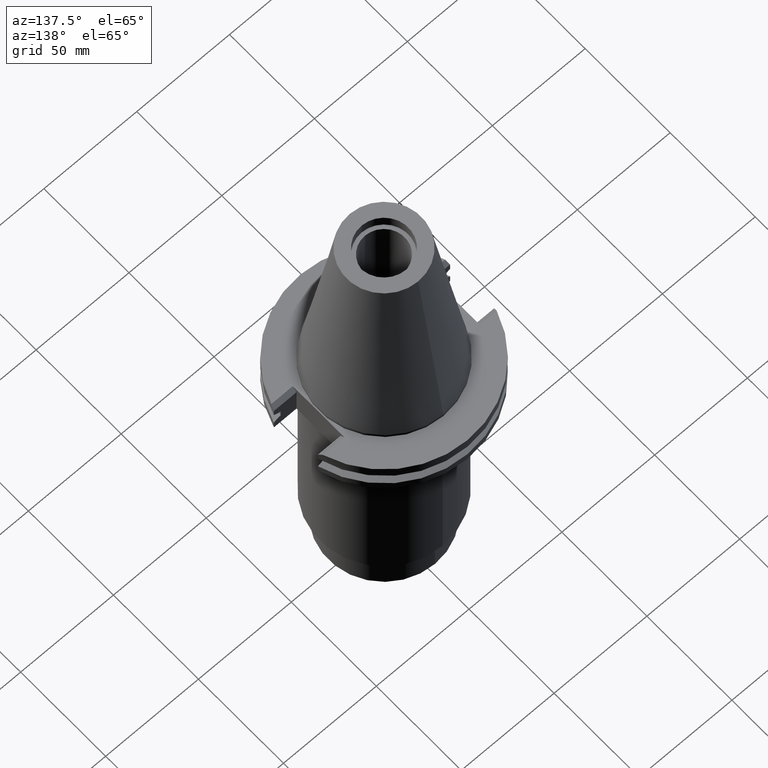
[diagram: clean part render]
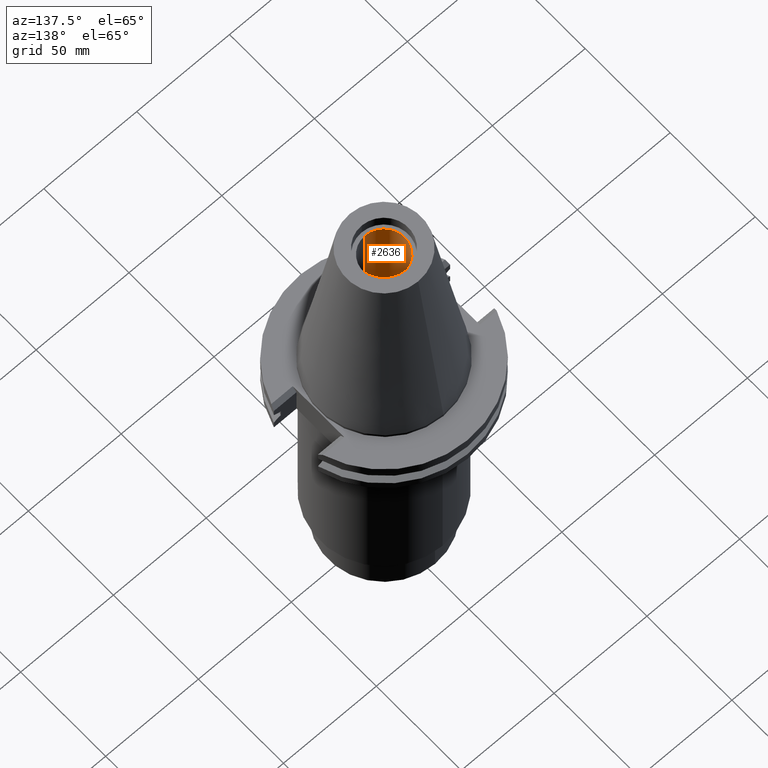
[diagram: same view with one face highlighted and labeled with its STEP entity id]
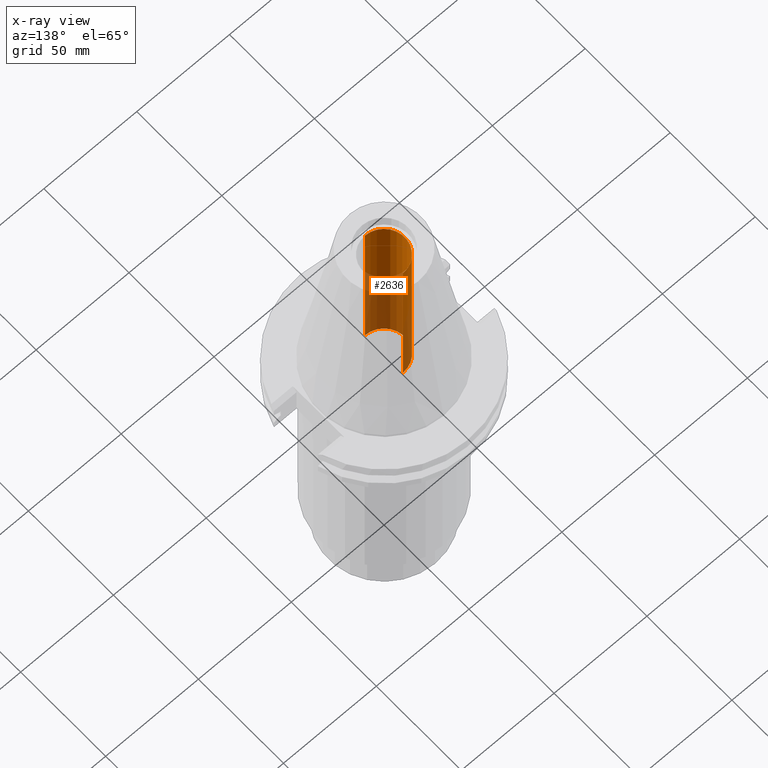
[diagram: x-ray of the same camera — body ghosted, the highlighted face saturated]
A machine part, auxiliary view. The second image highlights one B-rep face of the part: STEP entity #2636.
The next image is the same camera in x-ray: the body ghosted, the highlighted face saturated — about 53% of this face is hidden behind the body in this view.
In plain terms, the highlighted cylindrical surface (edge-blend (fillet) strip) has radius 11.15 mm, axis along (0, 0, -1).
Its self-contained STEP definition (entity closure, byte-faithful):
#1272=CARTESIAN_POINT('',(0.E0,2.625887666732E-14,1.6E0));
#1273=DIRECTION('',(0.E0,0.E0,-1.E0));
#1274=DIRECTION('',(0.E0,-1.E0,0.E0));
#1275=AXIS2_PLACEMENT_3D('',#1272,#1273,#1274);
#1304=DIRECTION('',(0.E0,0.E0,1.E0));
#1305=VECTOR('',#1304,9.365E1);
#1306=CARTESIAN_POINT('',(0.E0,-1.115E1,1.6E0));
#1307=LINE('',#1306,#1305);
#1311=DIRECTION('',(0.E0,0.E0,1.E0));
#1312=VECTOR('',#1311,9.365E1);
#1313=CARTESIAN_POINT('',(0.E0,1.115E1,1.6E0));
#1314=LINE('',#1313,#1312);
#1342=CARTESIAN_POINT('',(0.E0,2.625887666732E-14,9.525E1));
#1343=DIRECTION('',(0.E0,0.E0,1.E0));
#1344=DIRECTION('',(0.E0,1.E0,0.E0));
#1345=AXIS2_PLACEMENT_3D('',#1342,#1343,#1344);
#1376=CARTESIAN_POINT('',(0.E0,-1.115E1,9.525E1));
#1377=CARTESIAN_POINT('',(0.E0,1.115E1,9.525E1));
#1378=VERTEX_POINT('',#1376);
#1379=VERTEX_POINT('',#1377);
#1380=CARTESIAN_POINT('',(0.E0,1.115E1,1.6E0));
#1381=VERTEX_POINT('',#1380);
#1382=CARTESIAN_POINT('',(0.E0,-1.115E1,1.6E0));
#1383=VERTEX_POINT('',#1382);
#2622=CARTESIAN_POINT('',(0.E0,2.625887666732E-14,1.1442E2));
#2623=DIRECTION('',(0.E0,0.E0,-1.E0));
#2624=DIRECTION('',(0.E0,-1.E0,0.E0));
#2625=AXIS2_PLACEMENT_3D('',#2622,#2623,#2624);
#2626=CYLINDRICAL_SURFACE('',#2625,1.115E1);
#2628=ORIENTED_EDGE('',*,*,#2627,.F.);
#2629=ORIENTED_EDGE('',*,*,#2611,.F.);
#2631=ORIENTED_EDGE('',*,*,#2630,.T.);
#2633=ORIENTED_EDGE('',*,*,#2632,.F.);
#2634=EDGE_LOOP('',(#2628,#2629,#2631,#2633));
#2635=FACE_OUTER_BOUND('',#2634,.F.);
#1276=CIRCLE('',#1275,1.115E1);
#1346=CIRCLE('',#1345,1.115E1);
#2611=EDGE_CURVE('',#1383,#1381,#1276,.T.);
#2627=EDGE_CURVE('',#1381,#1379,#1314,.T.);
#2630=EDGE_CURVE('',#1383,#1378,#1307,.T.);
#2632=EDGE_CURVE('',#1379,#1378,#1346,.T.);
#2636=ADVANCED_FACE('',(#2635),#2626,.F.);